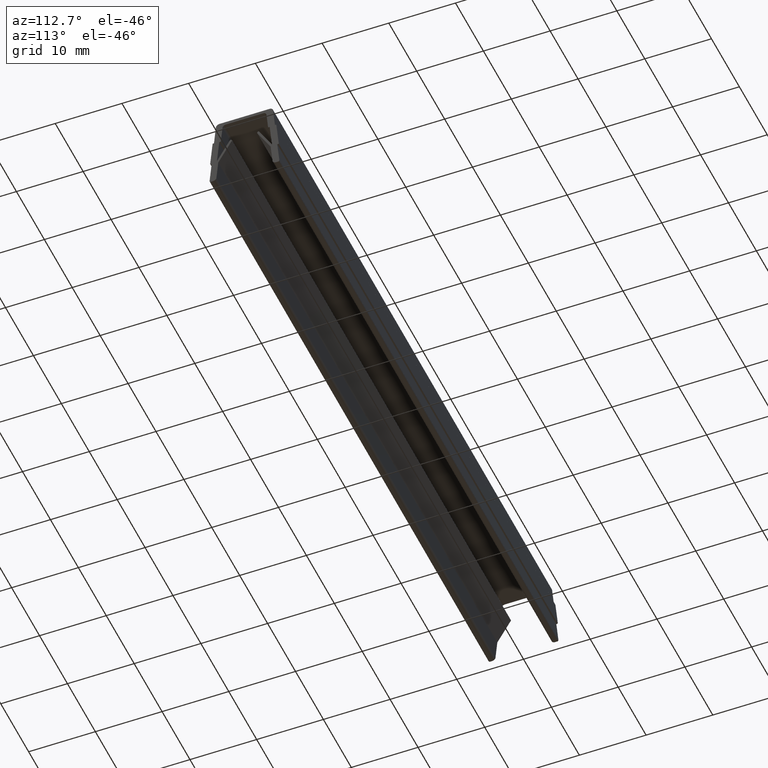
[diagram: clean part render]
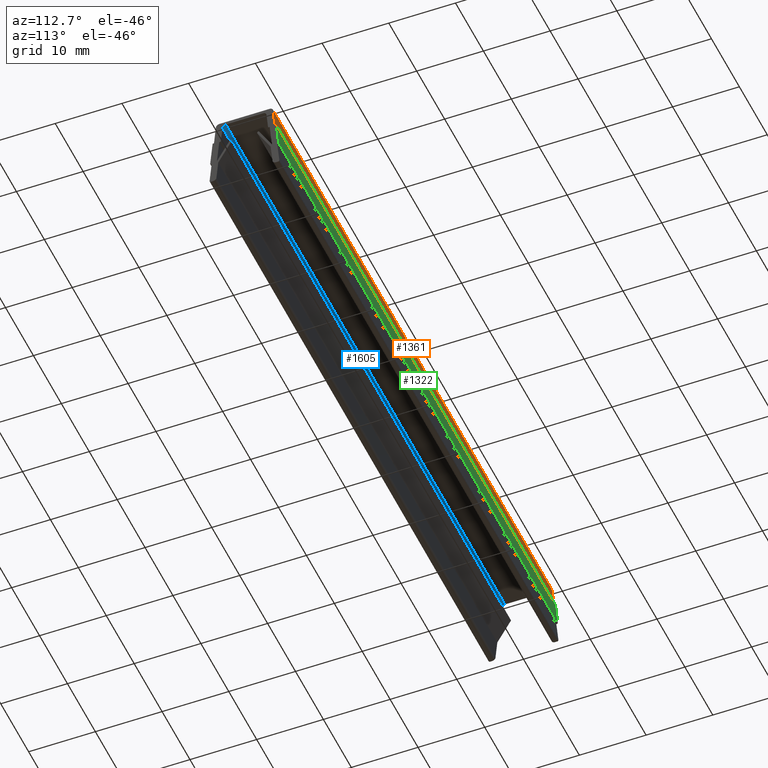
[diagram: same view with three faces highlighted in distinct colors, each labeled with its STEP entity id]
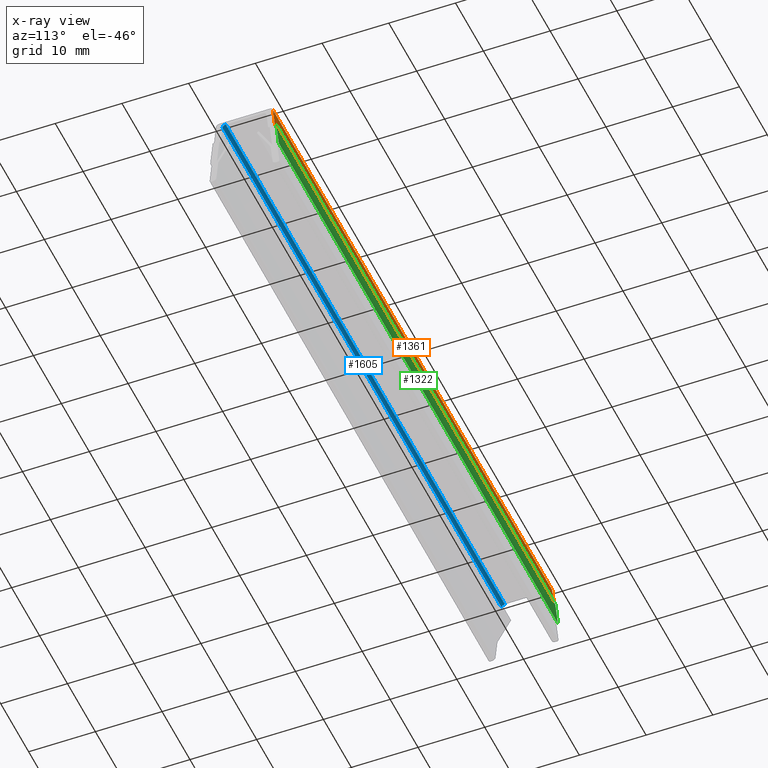
[diagram: x-ray of the same camera — body ghosted, the three highlighted faces saturated]
A machine part, auxiliary view with three faces highlighted in distinct colors.
The next image is the same camera in x-ray (body ghosted, the three faces saturated) — at least one of them is partly hidden behind the body in this view.
Their STEP definitions:

[orange] entity #1361 — the highlighted planar face has unit normal (0, -0.9955, -0.0948).
#175=CARTESIAN_POINT('',(100.0,4.570277129245234,-3.030798869891961));
#176=VERTEX_POINT('',#175);
#177=CARTESIAN_POINT('',(100.0,4.277114899130375,0.047404546313999));
#178=VERTEX_POINT('',#177);
#179=CARTESIAN_POINT('',(100.0,4.570277129245234,-3.030798869891961));
#180=DIRECTION('',(0.0,-0.094809092627996,0.995495472593952));
#181=VECTOR('',#180,3.092132009586260);
#182=LINE('',#179,#181);
#183=EDGE_CURVE('',#176,#178,#182,.T.);
#557=CARTESIAN_POINT('',(0.0,4.277114899130375,0.047404546313999));
#558=VERTEX_POINT('',#557);
#566=CARTESIAN_POINT('',(0.0,4.570277129245234,-3.030798869891961));
#567=VERTEX_POINT('',#566);
#568=CARTESIAN_POINT('',(0.0,4.570277129245234,-3.030798869891961));
#569=DIRECTION('',(0.0,-0.094809092627996,0.995495472593952));
#570=VECTOR('',#569,3.092132009586260);
#571=LINE('',#568,#570);
#572=EDGE_CURVE('',#567,#558,#571,.T.);
#1336=CARTESIAN_POINT('',(100.0,4.570277129245234,-3.030798869891961));
#1337=DIRECTION('',(-1.0,0.0,0.0));
#1338=VECTOR('',#1337,100.0);
#1339=LINE('',#1336,#1338);
#1340=EDGE_CURVE('',#176,#567,#1339,.T.);
#1345=CARTESIAN_POINT('',(105.0,4.584935240750980,-3.184709040702257));
#1346=DIRECTION('',(0.0,-0.995495472593952,-0.094809092627996));
#1347=DIRECTION('',(0.0,-0.094809092627996,0.995495472593952));
#1348=AXIS2_PLACEMENT_3D('',#1345,#1346,#1347);
#1349=PLANE('',#1348);
#1350=ORIENTED_EDGE('',*,*,#572,.T.);
#1351=CARTESIAN_POINT('',(0.0,4.277114899130375,0.047404546313999));
#1352=DIRECTION('',(1.0,0.0,0.0));
#1353=VECTOR('',#1352,100.0);
#1354=LINE('',#1351,#1353);
#1355=EDGE_CURVE('',#558,#178,#1354,.T.);
#1356=ORIENTED_EDGE('',*,*,#1355,.T.);
#1357=ORIENTED_EDGE('',*,*,#183,.F.);
#1358=ORIENTED_EDGE('',*,*,#1340,.T.);
#1359=EDGE_LOOP('',(#1350,#1356,#1357,#1358));
#1360=FACE_OUTER_BOUND('',#1359,.T.);
#1361=ADVANCED_FACE('',(#1360),#1349,.F.);

[blue] entity #1605 — the highlighted cylindrical surface (edge-blend (fillet) strip) has radius 0.5 mm, axis along (1, 0, 0).
#359=CARTESIAN_POINT('',(100.0,-3.293104328922475,-0.452595453685998));
#360=VERTEX_POINT('',#359);
#367=CARTESIAN_POINT('',(100.0,-2.795356592625495,1.776357E-015));
#368=VERTEX_POINT('',#367);
#369=CARTESIAN_POINT('',(100.0,-2.795356592625495,-0.499999999999998));
#370=DIRECTION('',(-1.0,0.0,0.0));
#371=DIRECTION('',(0.0,-1.0,6.123234E-017));
#372=AXIS2_PLACEMENT_3D('',#369,#370,#371);
#373=CIRCLE('',#372,0.500000000000001);
#374=EDGE_CURVE('',#360,#368,#373,.T.);
#731=CARTESIAN_POINT('',(0.0,-2.795356592625495,1.776357E-015));
#732=VERTEX_POINT('',#731);
#739=CARTESIAN_POINT('',(0.0,-3.293104328922475,-0.452595453686000));
#740=VERTEX_POINT('',#739);
#741=CARTESIAN_POINT('',(0.0,-2.795356592625495,-0.499999999999998));
#742=DIRECTION('',(1.0,0.0,0.0));
#743=DIRECTION('',(0.0,-1.0,6.123234E-017));
#744=AXIS2_PLACEMENT_3D('',#741,#742,#743);
#745=CIRCLE('',#744,0.500000000000001);
#746=EDGE_CURVE('',#732,#740,#745,.T.);
#1124=CARTESIAN_POINT('',(100.0,-2.795356592625495,1.776357E-015));
#1125=DIRECTION('',(-1.0,0.0,0.0));
#1126=VECTOR('',#1125,100.0);
#1127=LINE('',#1124,#1126);
#1128=EDGE_CURVE('',#368,#732,#1127,.T.);
#1139=CARTESIAN_POINT('',(0.0,-3.293104328922475,-0.452595453686000));
#1140=DIRECTION('',(1.0,0.0,0.0));
#1141=VECTOR('',#1140,100.0);
#1142=LINE('',#1139,#1141);
#1143=EDGE_CURVE('',#740,#360,#1142,.T.);
#1594=CARTESIAN_POINT('',(-1.000000E-008,-2.795356592625495,-0.499999999999998));
#1595=DIRECTION('',(1.0,0.0,0.0));
#1596=DIRECTION('',(0.0,1.0,-6.123234E-017));
#1597=AXIS2_PLACEMENT_3D('',#1594,#1595,#1596);
#1598=CYLINDRICAL_SURFACE('',#1597,0.500000000000001);
#1599=ORIENTED_EDGE('',*,*,#374,.F.);
#1600=ORIENTED_EDGE('',*,*,#1143,.F.);
#1601=ORIENTED_EDGE('',*,*,#746,.F.);
#1602=ORIENTED_EDGE('',*,*,#1128,.F.);
#1603=EDGE_LOOP('',(#1599,#1600,#1601,#1602));
#1604=FACE_OUTER_BOUND('',#1603,.T.);
#1605=ADVANCED_FACE('',(#1604),#1598,.F.);

[green] entity #1322 — the highlighted planar face has unit normal (0, -0.9955, -0.0948).
#507=CARTESIAN_POINT('',(100.0,5.139131739951893,-6.894269971374458));
#508=VERTEX_POINT('',#507);
#516=CARTESIAN_POINT('',(100.0,4.778857187965826,-3.111387175520783));
#517=VERTEX_POINT('',#516);
#518=CARTESIAN_POINT('',(100.0,5.139131739951893,-6.894269971374457));
#519=DIRECTION('',(0.0,-0.094809092627995,0.995495472593952));
#520=VECTOR('',#519,3.799999999996642);
#521=LINE('',#518,#520);
#522=EDGE_CURVE('',#508,#517,#521,.T.);
#582=CARTESIAN_POINT('',(0.0,4.778857187965834,-3.111387175520783));
#583=VERTEX_POINT('',#582);
#591=CARTESIAN_POINT('',(0.0,5.139131739951893,-6.894269971374458));
#592=VERTEX_POINT('',#591);
#593=CARTESIAN_POINT('',(0.0,5.139131739951893,-6.894269971374458));
#594=DIRECTION('',(0.0,-0.094809092627995,0.995495472593952));
#595=VECTOR('',#594,3.799999999996641);
#596=LINE('',#593,#595);
#597=EDGE_CURVE('',#592,#583,#596,.T.);
#1301=CARTESIAN_POINT('',(101.149641620719540,5.148612704157046,-6.993820095528563));
#1302=DIRECTION('',(0.0,-0.995495472593952,-0.094809092627995));
#1303=DIRECTION('',(0.0,-0.094809092627995,0.995495472593952));
#1304=AXIS2_PLACEMENT_3D('',#1301,#1302,#1303);
#1305=PLANE('',#1304);
#1306=ORIENTED_EDGE('',*,*,#522,.F.);
#1307=CARTESIAN_POINT('',(100.0,5.139131739951893,-6.894269971374458));
#1308=DIRECTION('',(-1.0,0.0,0.0));
#1309=VECTOR('',#1308,100.0);
#1310=LINE('',#1307,#1309);
#1311=EDGE_CURVE('',#508,#592,#1310,.T.);
#1312=ORIENTED_EDGE('',*,*,#1311,.T.);
#1313=ORIENTED_EDGE('',*,*,#597,.T.);
#1314=CARTESIAN_POINT('',(1.421085E-014,4.778857187965834,-3.111387175520783));
#1315=DIRECTION('',(1.0,0.0,0.0));
#1316=VECTOR('',#1315,99.999999999999986);
#1317=LINE('',#1314,#1316);
#1318=EDGE_CURVE('',#583,#517,#1317,.T.);
#1319=ORIENTED_EDGE('',*,*,#1318,.T.);
#1320=EDGE_LOOP('',(#1306,#1312,#1313,#1319));
#1321=FACE_OUTER_BOUND('',#1320,.T.);
#1322=ADVANCED_FACE('',(#1321),#1305,.F.);